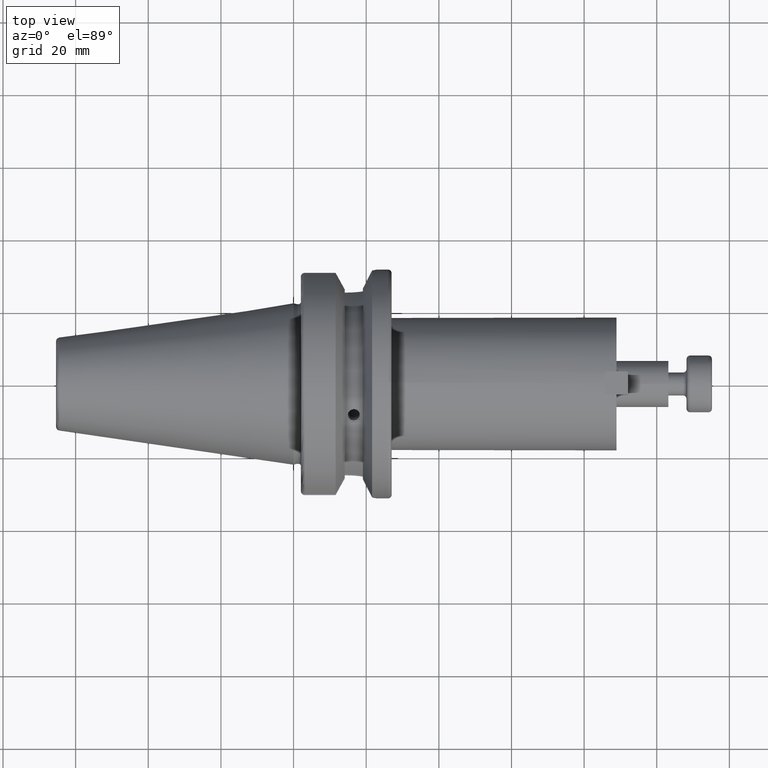
[diagram: clean part render]
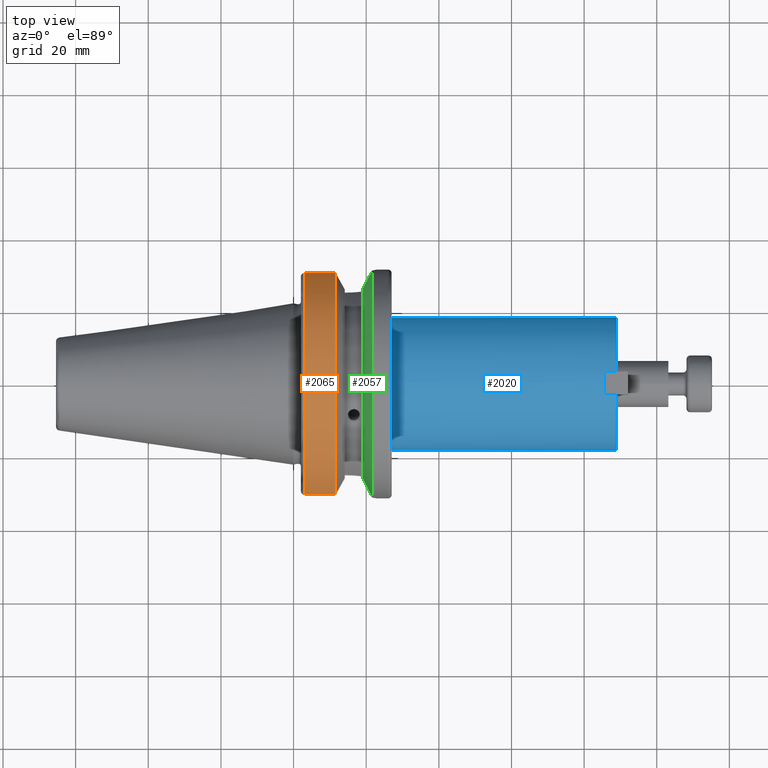
[diagram: same view with three faces highlighted in distinct colors, each labeled with its STEP entity id]
A machine part, top view with three faces highlighted in distinct colors.
Their STEP definitions:

[orange] entity #2065 — the highlighted cylindrical surface (partial cylindrical patch) has radius 31.5 mm, axis along (1, 0, 0).
#169=CYLINDRICAL_SURFACE('',#2368,31.5);
#239=CIRCLE('',#2367,31.5);
#240=CIRCLE('',#2369,31.5000000000001);
#373=FACE_OUTER_BOUND('',#511,.T.);
#511=EDGE_LOOP('',(#1682,#1683,#1684,#1685));
#628=LINE('',#3561,#762);
#648=LINE('',#3715,#782);
#762=VECTOR('',#2727,10.);
#782=VECTOR('',#2795,10.);
#930=VERTEX_POINT('',#3556);
#931=VERTEX_POINT('',#3560);
#960=VERTEX_POINT('',#3703);
#961=VERTEX_POINT('',#3714);
#1161=EDGE_CURVE('',#931,#930,#628,.T.);
#1204=EDGE_CURVE('',#961,#960,#648,.T.);
#1225=EDGE_CURVE('',#960,#931,#239,.T.);
#1226=EDGE_CURVE('',#961,#930,#240,.T.);
#1682=ORIENTED_EDGE('',*,*,#1161,.T.);
#1683=ORIENTED_EDGE('',*,*,#1226,.F.);
#1684=ORIENTED_EDGE('',*,*,#1204,.T.);
#1685=ORIENTED_EDGE('',*,*,#1225,.T.);
#2065=ADVANCED_FACE('',(#373),#169,.T.);
#2367=AXIS2_PLACEMENT_3D('',#3758,#2847,#2848);
#2368=AXIS2_PLACEMENT_3D('',#3759,#2849,#2850);
#2369=AXIS2_PLACEMENT_3D('',#3760,#2851,#2852);
#2727=DIRECTION('',(1.,0.,0.));
#2795=DIRECTION('',(-1.,0.,0.));
#2847=DIRECTION('center_axis',(1.,0.,0.));
#2848=DIRECTION('ref_axis',(0.,0.,-1.));
#2849=DIRECTION('center_axis',(1.,0.,0.));
#2850=DIRECTION('ref_axis',(0.,1.,0.));
#2851=DIRECTION('center_axis',(1.,0.,0.));
#2852=DIRECTION('ref_axis',(0.,0.,-1.));
#3556=CARTESIAN_POINT('',(11.5690363073382,-30.4540227227866,8.05));
#3560=CARTESIAN_POINT('',(2.99999999999999,-30.4540227227866,8.05));
#3561=CARTESIAN_POINT('',(7.28451815366907,-30.4540227227866,8.05));
#3703=CARTESIAN_POINT('',(2.99999999999999,30.4540227227866,8.05));
#3714=CARTESIAN_POINT('',(11.5690363073382,30.4540227227866,8.05));
#3715=CARTESIAN_POINT('',(7.28451815366907,30.4540227227866,8.05));
#3758=CARTESIAN_POINT('Origin',(2.99999999999999,0.,0.));
#3759=CARTESIAN_POINT('Origin',(7.28451815366907,0.,0.));
#3760=CARTESIAN_POINT('Origin',(11.5690363073382,0.,0.));

[blue] entity #2020 — the highlighted cylindrical surface (bore or boss wall) has radius 18.2775 mm, axis along (1, 0, 0).
#149=CYLINDRICAL_SURFACE('',#2267,18.2775);
#185=CIRCLE('',#2238,18.2775);
#186=CIRCLE('',#2239,18.2775);
#187=CIRCLE('',#2241,18.2775);
#189=CIRCLE('',#2243,18.2775);
#194=CIRCLE('',#2254,18.2775);
#202=CIRCLE('',#2268,18.2775);
#328=FACE_OUTER_BOUND('',#457,.T.);
#457=EDGE_LOOP('',(#1429,#1430,#1431,#1432,#1433,#1434,#1435,#1436,#1437,
#1438,#1439,#1440));
#582=LINE('',#3160,#716);
#588=LINE('',#3178,#722);
#596=LINE('',#3214,#730);
#599=LINE('',#3220,#733);
#606=LINE('',#3329,#740);
#716=VECTOR('',#2497,10.);
#722=VECTOR('',#2513,10.);
#730=VECTOR('',#2553,10.);
#733=VECTOR('',#2558,10.);
#740=VECTOR('',#2599,18.2775);
#850=VERTEX_POINT('',#3158);
#851=VERTEX_POINT('',#3159);
#857=VERTEX_POINT('',#3176);
#858=VERTEX_POINT('',#3177);
#861=VERTEX_POINT('',#3188);
#862=VERTEX_POINT('',#3192);
#865=VERTEX_POINT('',#3198);
#870=VERTEX_POINT('',#3213);
#872=VERTEX_POINT('',#3219);
#885=VERTEX_POINT('',#3328);
#1048=EDGE_CURVE('',#850,#851,#582,.T.);
#1056=EDGE_CURVE('',#857,#858,#588,.T.);
#1062=EDGE_CURVE('',#858,#861,#185,.T.);
#1063=EDGE_CURVE('',#861,#850,#186,.T.);
#1064=EDGE_CURVE('',#857,#862,#187,.T.);
#1068=EDGE_CURVE('',#865,#851,#189,.T.);
#1074=EDGE_CURVE('',#870,#862,#596,.T.);
#1077=EDGE_CURVE('',#865,#872,#599,.T.);
#1081=EDGE_CURVE('',#872,#870,#194,.T.);
#1097=EDGE_CURVE('',#861,#885,#606,.T.);
#1098=EDGE_CURVE('',#885,#885,#202,.T.);
#1429=ORIENTED_EDGE('',*,*,#1048,.T.);
#1430=ORIENTED_EDGE('',*,*,#1068,.F.);
#1431=ORIENTED_EDGE('',*,*,#1077,.T.);
#1432=ORIENTED_EDGE('',*,*,#1081,.T.);
#1433=ORIENTED_EDGE('',*,*,#1074,.T.);
#1434=ORIENTED_EDGE('',*,*,#1064,.F.);
#1435=ORIENTED_EDGE('',*,*,#1056,.T.);
#1436=ORIENTED_EDGE('',*,*,#1062,.T.);
#1437=ORIENTED_EDGE('',*,*,#1097,.T.);
#1438=ORIENTED_EDGE('',*,*,#1098,.F.);
#1439=ORIENTED_EDGE('',*,*,#1097,.F.);
#1440=ORIENTED_EDGE('',*,*,#1063,.T.);
#2020=ADVANCED_FACE('',(#328),#149,.T.);
#2238=AXIS2_PLACEMENT_3D('',#3189,#2525,#2526);
#2239=AXIS2_PLACEMENT_3D('',#3190,#2527,#2528);
#2241=AXIS2_PLACEMENT_3D('',#3193,#2531,#2532);
#2243=AXIS2_PLACEMENT_3D('',#3200,#2537,#2538);
#2254=AXIS2_PLACEMENT_3D('',#3227,#2567,#2568);
#2267=AXIS2_PLACEMENT_3D('',#3327,#2597,#2598);
#2268=AXIS2_PLACEMENT_3D('',#3330,#2600,#2601);
#2497=DIRECTION('',(1.,0.,0.));
#2513=DIRECTION('',(-1.,0.,0.));
#2525=DIRECTION('center_axis',(-1.,0.,0.));
#2526=DIRECTION('ref_axis',(0.,0.,-1.));
#2527=DIRECTION('center_axis',(-1.,0.,0.));
#2528=DIRECTION('ref_axis',(0.,0.,-1.));
#2531=DIRECTION('center_axis',(1.,0.,0.));
#2532=DIRECTION('ref_axis',(0.,0.,-1.));
#2537=DIRECTION('center_axis',(1.,0.,0.));
#2538=DIRECTION('ref_axis',(0.,0.,-1.));
#2553=DIRECTION('',(1.,0.,0.));
#2558=DIRECTION('',(-1.,0.,0.));
#2567=DIRECTION('center_axis',(-1.,0.,0.));
#2568=DIRECTION('ref_axis',(0.,0.,-1.));
#2597=DIRECTION('center_axis',(1.,0.,0.));
#2598=DIRECTION('ref_axis',(0.,0.,-1.));
#2599=DIRECTION('',(-1.,0.,0.));
#2600=DIRECTION('center_axis',(-1.,0.,0.));
#2601=DIRECTION('ref_axis',(0.,0.,-1.));
#3158=CARTESIAN_POINT('',(85.7,3.175,17.9996216974135));
#3159=CARTESIAN_POINT('',(88.9,3.175,17.9996216974135));
#3160=CARTESIAN_POINT('',(57.95,3.175,17.9996216974135));
#3176=CARTESIAN_POINT('',(88.9,-3.175,17.9996216974135));
#3177=CARTESIAN_POINT('',(85.7,-3.175,17.9996216974135));
#3178=CARTESIAN_POINT('',(57.95,-3.175,17.9996216974135));
#3188=CARTESIAN_POINT('',(85.7,-2.23834818714157E-15,18.2775));
#3189=CARTESIAN_POINT('Origin',(85.7,0.,0.));
#3190=CARTESIAN_POINT('Origin',(85.7,0.,0.));
#3192=CARTESIAN_POINT('',(88.9,-3.175,-17.9996216974135));
#3193=CARTESIAN_POINT('Origin',(88.9,0.,0.));
#3198=CARTESIAN_POINT('',(88.9,3.175,-17.9996216974135));
#3200=CARTESIAN_POINT('Origin',(88.9,0.,0.));
#3213=CARTESIAN_POINT('',(85.7,-3.175,-17.9996216974135));
#3214=CARTESIAN_POINT('',(57.95,-3.175,-17.9996216974135));
#3219=CARTESIAN_POINT('',(85.7,3.175,-17.9996216974135));
#3220=CARTESIAN_POINT('',(57.95,3.175,-17.9996216974135));
#3227=CARTESIAN_POINT('Origin',(85.7,0.,0.));
#3327=CARTESIAN_POINT('Origin',(57.95,0.,0.));
#3328=CARTESIAN_POINT('',(27.,-2.23834818714157E-15,18.2775));
#3329=CARTESIAN_POINT('',(57.95,-2.23834818714157E-15,18.2775));
#3330=CARTESIAN_POINT('Origin',(27.,0.,0.));

[green] entity #2057 — the highlighted conical surface has half-angle 60.125 deg.
#105=B_SPLINE_CURVE_WITH_KNOTS('',3,(#3531,#3532,#3533,#3534,#3535,#3536),
 .UNSPECIFIED.,.F.,.F.,(4,2,4),(1.46421027899563,1.54570476603974,2.04294020568402),
 .UNSPECIFIED.);
#114=B_SPLINE_CURVE_WITH_KNOTS('',3,(#3690,#3691,#3692,#3693,#3694,#3695),
 .UNSPECIFIED.,.F.,.F.,(4,2,4),(3.12975744792551,3.6269928875698,3.7084873746139),
 .UNSPECIFIED.);
#217=CIRCLE('',#2326,31.5);
#227=CIRCLE('',#2348,27.0940716549138);
#301=CONICAL_SURFACE('',#2347,29.2970358274569,1.0493792127616);
#365=FACE_OUTER_BOUND('',#500,.T.);
#500=EDGE_LOOP('',(#1639,#1640,#1641,#1642));
#922=VERTEX_POINT('',#3523);
#923=VERTEX_POINT('',#3530);
#943=VERTEX_POINT('',#3610);
#956=VERTEX_POINT('',#3688);
#1152=EDGE_CURVE('',#923,#922,#105,.T.);
#1177=EDGE_CURVE('',#943,#922,#217,.T.);
#1199=EDGE_CURVE('',#943,#956,#114,.T.);
#1210=EDGE_CURVE('',#956,#923,#227,.T.);
#1639=ORIENTED_EDGE('',*,*,#1152,.T.);
#1640=ORIENTED_EDGE('',*,*,#1177,.F.);
#1641=ORIENTED_EDGE('',*,*,#1199,.T.);
#1642=ORIENTED_EDGE('',*,*,#1210,.T.);
#2057=ADVANCED_FACE('',(#365),#301,.T.);
#2326=AXIS2_PLACEMENT_3D('',#3621,#2747,#2748);
#2347=AXIS2_PLACEMENT_3D('',#3727,#2804,#2805);
#2348=AXIS2_PLACEMENT_3D('',#3728,#2806,#2807);
#2747=DIRECTION('center_axis',(1.,0.,0.));
#2748=DIRECTION('ref_axis',(0.,0.,-1.));
#2804=DIRECTION('center_axis',(1.,0.,0.));
#2805=DIRECTION('ref_axis',(0.,1.,0.));
#2806=DIRECTION('center_axis',(1.,0.,0.));
#2807=DIRECTION('ref_axis',(0.,0.,-1.));
#3523=CARTESIAN_POINT('',(21.6309636926618,-31.1782420264945,4.49079326370462));
#3530=CARTESIAN_POINT('',(19.1,-26.201311395455,6.89782574439221));
#3531=CARTESIAN_POINT('Ctrl Pts',(19.1,-26.201311395455,6.89782574439221));
#3532=CARTESIAN_POINT('Ctrl Pts',(19.2210929544554,-26.438473693351,6.82497151762397));
#3533=CARTESIAN_POINT('Ctrl Pts',(19.3406963650696,-26.6728819297427,6.74867108656043));
#3534=CARTESIAN_POINT('Ctrl Pts',(20.1784155384866,-28.3157123387483,6.1823136897693));
#3535=CARTESIAN_POINT('Ctrl Pts',(20.9728756148302,-29.8797957262938,5.46983244373119));
#3536=CARTESIAN_POINT('Ctrl Pts',(21.6309636926618,-31.1782420264945,4.49079326370462));
#3610=CARTESIAN_POINT('',(21.6309636926618,31.1782420264945,4.49079326370462));
#3621=CARTESIAN_POINT('Origin',(21.6309636926618,0.,0.));
#3688=CARTESIAN_POINT('',(19.1,26.201311395455,6.89782574439221));
#3690=CARTESIAN_POINT('Ctrl Pts',(21.6309636926618,31.1782420264945,4.49079326370461));
#3691=CARTESIAN_POINT('Ctrl Pts',(20.9728756148302,29.8797957262938,5.46983244373119));
#3692=CARTESIAN_POINT('Ctrl Pts',(20.1784155384866,28.3157123387483,6.1823136897693));
#3693=CARTESIAN_POINT('Ctrl Pts',(19.3406963650696,26.6728819297427,6.74867108656043));
#3694=CARTESIAN_POINT('Ctrl Pts',(19.2210929544554,26.438473693351,6.82497151762397));
#3695=CARTESIAN_POINT('Ctrl Pts',(19.1,26.201311395455,6.89782574439222));
#3727=CARTESIAN_POINT('Origin',(20.3654818463309,0.,0.));
#3728=CARTESIAN_POINT('Origin',(19.1,0.,0.));